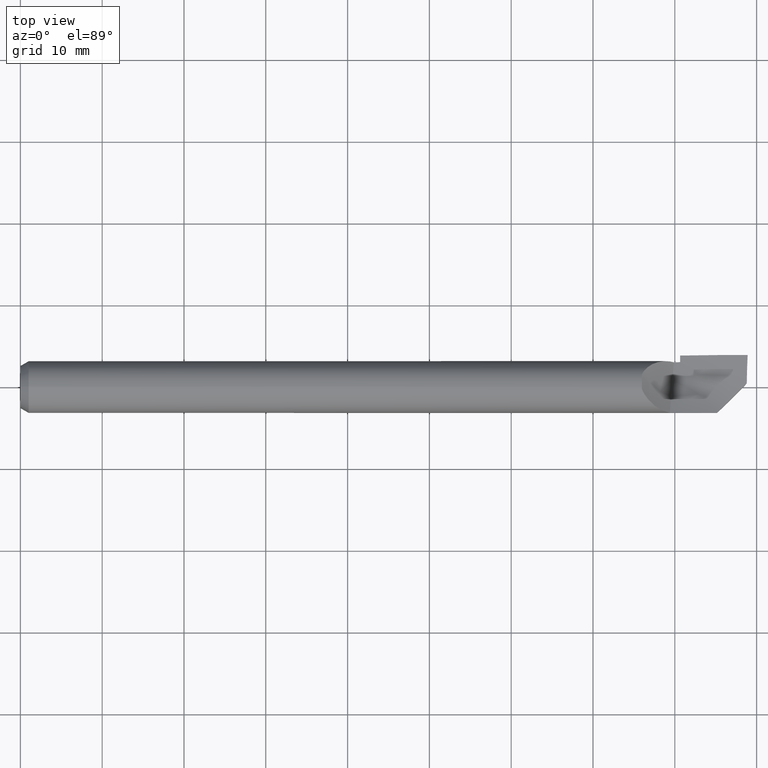
[diagram: clean part render]
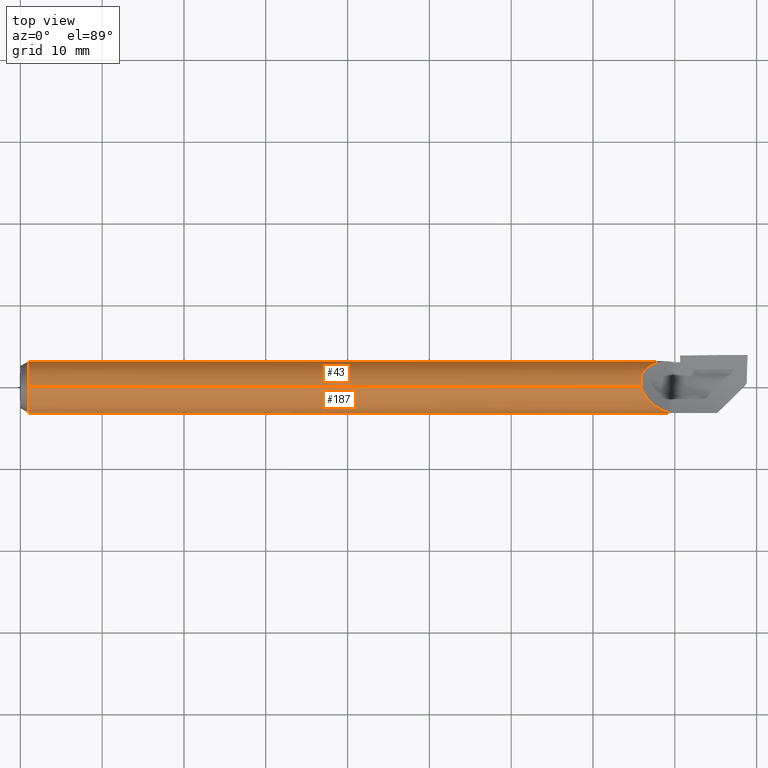
[diagram: same view with one multi-face feature highlighted, each face labeled with its STEP entity id]
A machine part, top view. The highlighted faces form ONE feature: a constant-radius fillet chain: 2 tangent blend faces with common blend radius 3.1725 mm. The faces share edges in the B-rep.
Their STEP definitions:
[1] entity #43 (Cylinder):
#5 = ORIENTED_EDGE ( 'NONE', *, *, #636, .F. ) ;
#9 = CARTESIAN_POINT ( 'NONE',  ( 3.175000000000001155, 0.09055362798966817839, -0.08602354595091822598 ) ) ;
#13 = CARTESIAN_POINT ( 'NONE',  ( 3.060351242161530205, 0.1169295297306296999, 0.04390447595362416411 ) ) ;
#18 = EDGE_CURVE ( 'NONE', #201, #199, #127, .T. ) ;
#19 = DIRECTION ( 'NONE',  ( -1.000000000000000000, -0.000000000000000000, -0.000000000000000000 ) ) ;
#36 = CARTESIAN_POINT ( 'NONE',  ( 3.013159567584972276, 0.08955409253617904741, 0.08708879624686161058 ) ) ;
#43 = ADVANCED_FACE ( 'NONE', ( #374 ), #301, .T. ) ;
#44 =( BOUNDED_CURVE ( )  B_SPLINE_CURVE ( 2, ( #358, #521, #574 ),
 .UNSPECIFIED., .F., .F. ) 
 B_SPLINE_CURVE_WITH_KNOTS ( ( 3, 3 ),
 ( 0.02873534713698542783, 0.03143753000647300788 ),
 .UNSPECIFIED. ) 
 CURVE ( )  GEOMETRIC_REPRESENTATION_ITEM ( )  RATIONAL_B_SPLINE_CURVE ( ( 0.9698469433659832051, 0.9697818586907493987, 0.9697867123744317031 ) ) 
 REPRESENTATION_ITEM ( '' )  );
#45 = CARTESIAN_POINT ( 'NONE',  ( 3.015572442172250955, 0.09174419123815412414, 0.08479956588348636082 ) ) ;
#50 = EDGE_LOOP ( 'NONE', ( #5, #109, #400, #533, #221, #649, #723, #511, #609, #392, #262 ) ) ;
#57 = AXIS2_PLACEMENT_3D ( 'NONE', #480, #286, #524 ) ;
#69 = CARTESIAN_POINT ( 'NONE',  ( 3.164993681968681916, 0.04158297014477048414, -0.1177773303377043640 ) ) ;
#77 = CARTESIAN_POINT ( 'NONE',  ( 3.092052141534185505, 0.1240269611545397332, 0.01494308968733345892 ) ) ;
#85 = CARTESIAN_POINT ( 'NONE',  ( 3.144404332545035263, 0.1199521406065451878, -0.03480652185880706018 ) ) ;
#87 = CARTESIAN_POINT ( 'NONE',  ( 3.097980661279803982, 0.1245561299189576893, 0.009418666560764303933 ) ) ;
#96 = VECTOR ( 'NONE', #19, 39.37007874015748143 ) ;
#100 = AXIS2_PLACEMENT_3D ( 'NONE', #114, #457, #122 ) ;
#101 = CARTESIAN_POINT ( 'NONE',  ( 0.04000000000000000083, 1.529583852135044220E-17, -0.1248999999999999971 ) ) ;
#109 = ORIENTED_EDGE ( 'NONE', *, *, #137, .T. ) ;
#114 = CARTESIAN_POINT ( 'NONE',  ( 3.174999999999999822, 0.000000000000000000, 0.000000000000000000 ) ) ;
#115 = VERTEX_POINT ( 'NONE', #319 ) ;
#121 = B_SPLINE_CURVE_WITH_KNOTS ( 'NONE', 3,
 ( #154, #705, #599, #146, #550, #36, #45, #256, #486, #495, #384, #709, #436, #654, #234, #591, #580, #631, #189, #242, #128, #13, #412, #181, #641, #702, #134, #646, #367, #140, #634, #77, #586, #87, #291, #475, #471, #465, #232, #362, #479, #246 ),
 .UNSPECIFIED., .F., .F.,
 ( 4, 2, 2, 1, 1, 1, 1, 2, 2, 2, 2, 1, 1, 1, 1, 1, 2, 2, 2, 2, 2, 1, 1, 1, 2, 2, 4 ),
 ( 0.000000000000000000, 0.1249999999994285682, 0.1874999999991447397, 0.2187499999990028809, 0.2343749999989318822, 0.2421874999988963550, 0.2460937499988766208, 0.2480468749988667398, 0.2499999999988568311, 0.3749999999981504795, 0.4374999999977973175, 0.4687499999976207921, 0.4843749999975303089, 0.4921874999974871767, 0.4960937499974656384, 0.4980468749974548692, 0.4990234374974494291, 0.4999999999974440446, 0.6249999999979299892, 0.6874999999981754595, 0.7187499999983002485, 0.7343749999983625321, 0.7421874999983953947, 0.7460937499984133803, 0.7480468749984239274, 0.7499999999984345855, 1.000000000000000000 ),
 .UNSPECIFIED. ) ;
#122 = DIRECTION ( 'NONE',  ( 0.000000000000000000, 0.000000000000000000, -1.000000000000000000 ) ) ;
#123 = AXIS2_PLACEMENT_3D ( 'NONE', #318, #502, #552 ) ;
#127 = CIRCLE ( 'NONE', #57, 0.1248999999999999971 ) ;
#128 = CARTESIAN_POINT ( 'NONE',  ( 3.059456858033632543, 0.1166230789619448899, 0.04471572362713241433 ) ) ;
#134 = CARTESIAN_POINT ( 'NONE',  ( 3.063536984851126910, 0.1179943198108090313, 0.04101498454096539487 ) ) ;
#137 = EDGE_CURVE ( 'NONE', #307, #223, #409, .T. ) ;
#140 = CARTESIAN_POINT ( 'NONE',  ( 3.082629254565365962, 0.1227126659657724189, 0.02367513149059939301 ) ) ;
#146 = CARTESIAN_POINT ( 'NONE',  ( 3.005712418283758680, 0.08203240738333091031, 0.09427124872229240837 ) ) ;
#154 = CARTESIAN_POINT ( 'NONE',  ( 2.991000401229259253, 0.05945250750572621951, 0.1098426572479087732 ) ) ;
#155 = CIRCLE ( 'NONE', #100, 0.1248999999999999971 ) ;
#164 = AXIS2_PLACEMENT_3D ( 'NONE', #247, #422, #642 ) ;
#170 =( BOUNDED_CURVE ( )  B_SPLINE_CURVE ( 2, ( #433, #614, #269 ),
 .UNSPECIFIED., .F., .T. ) 
 B_SPLINE_CURVE_WITH_KNOTS ( ( 3, 3 ),
 ( 0.6154841053960781183, 0.6377767502489465334 ),
 .UNSPECIFIED. ) 
 CURVE ( )  GEOMETRIC_REPRESENTATION_ITEM ( )  RATIONAL_B_SPLINE_CURVE ( ( 0.9963841304086362705, 0.9961399496440248580, 0.9959362357333968463 ) ) 
 REPRESENTATION_ITEM ( '' )  );
#181 = CARTESIAN_POINT ( 'NONE',  ( 3.060993577853104330, 0.1171461910606215739, 0.04332186279367256088 ) ) ;
#189 = CARTESIAN_POINT ( 'NONE',  ( 3.054209512856410846, 0.1147115061212685694, 0.04947554016240530983 ) ) ;
#196 = VERTEX_POINT ( 'NONE', #9 ) ;
#199 = VERTEX_POINT ( 'NONE', #683 ) ;
#201 = VERTEX_POINT ( 'NONE', #355 ) ;
#219 = CARTESIAN_POINT ( 'NONE',  ( 3.174999999999998934, 0.1205259677332470303, -0.03276432666734185872 ) ) ;
#221 = ORIENTED_EDGE ( 'NONE', *, *, #18, .F. ) ;
#223 = VERTEX_POINT ( 'NONE', #101 ) ;
#230 = DIRECTION ( 'NONE',  ( -1.000000000000000000, -0.000000000000000000, -0.000000000000000000 ) ) ;
#231 =( BOUNDED_CURVE ( )  B_SPLINE_CURVE ( 2, ( #630, #69, #360 ),
 .UNSPECIFIED., .F., .T. ) 
 B_SPLINE_CURVE_WITH_KNOTS ( ( 3, 3 ),
 ( 0.3622232497511194693, 0.3845158946039529124 ),
 .UNSPECIFIED. ) 
 CURVE ( )  GEOMETRIC_REPRESENTATION_ITEM ( )  RATIONAL_B_SPLINE_CURVE ( ( 0.9959362357333982896, 0.9961399496440260792, 0.9963841304086371586 ) ) 
 REPRESENTATION_ITEM ( '' )  );
#232 = CARTESIAN_POINT ( 'NONE',  ( 3.102797602016997836, 0.1248031549621601705, 0.004919168521958743392 ) ) ;
#234 = CARTESIAN_POINT ( 'NONE',  ( 3.032374988633280477, 0.1041527270385999571, 0.06928547170208708417 ) ) ;
#242 = CARTESIAN_POINT ( 'NONE',  ( 3.057685084005004494, 0.1159995307715388502, 0.04632285640271501664 ) ) ;
#243 = DIRECTION ( 'NONE',  ( -1.000000000000000000, -0.000000000000000000, -0.000000000000000000 ) ) ;
#246 = CARTESIAN_POINT ( 'NONE',  ( 3.144404332545035263, 0.1199521406065451878, -0.03480652185880706018 ) ) ;
#247 = CARTESIAN_POINT ( 'NONE',  ( 0.04000000000000000083, 0.000000000000000000, 0.000000000000000000 ) ) ;
#254 = AXIS2_PLACEMENT_3D ( 'NONE', #648, #243, #593 ) ;
#256 = CARTESIAN_POINT ( 'NONE',  ( 3.018561227604406483, 0.09422468548347183448, 0.08199839772101800983 ) ) ;
#257 = VERTEX_POINT ( 'NONE', #85 ) ;
#262 = ORIENTED_EDGE ( 'NONE', *, *, #677, .F. ) ;
#269 = CARTESIAN_POINT ( 'NONE',  ( 3.175000000000001155, 0.09055362798966817839, -0.08602354595091822598 ) ) ;
#274 = CIRCLE ( 'NONE', #164, 0.1248999999999999971 ) ;
#277 = CARTESIAN_POINT ( 'NONE',  ( 0.000000000000000000, 0.000000000000000000, 0.1248999999999999971 ) ) ;
#285 = EDGE_CURVE ( 'NONE', #201, #257, #121, .T. ) ;
#286 = DIRECTION ( 'NONE',  ( 1.000000000000000000, 0.000000000000000000, 0.000000000000000000 ) ) ;
#291 = CARTESIAN_POINT ( 'NONE',  ( 3.100424267437243309, 0.1246990184371287308, 0.007136783712175319427 ) ) ;
#295 = CARTESIAN_POINT ( 'NONE',  ( 3.154997276976144960, 0.04082568376012370159, -0.1180392882669460269 ) ) ;
#301 = CYLINDRICAL_SURFACE ( 'NONE', #254, 0.1248999999999999971 ) ;
#307 = VERTEX_POINT ( 'NONE', #519 ) ;
#318 = CARTESIAN_POINT ( 'NONE',  ( 3.155000000000000249, 0.000000000000000000, 0.000000000000000000 ) ) ;
#319 = CARTESIAN_POINT ( 'NONE',  ( 0.04000000000000000083, 0.000000000000000000, 0.1248999999999999971 ) ) ;
#341 = DIRECTION ( 'NONE',  ( 0.000000000000000000, 0.000000000000000000, -1.000000000000000000 ) ) ;
#355 = CARTESIAN_POINT ( 'NONE',  ( 2.991000401229259253, 0.05945250750572621951, 0.1098426572479087732 ) ) ;
#356 = EDGE_CURVE ( 'NONE', #577, #257, #44, .T. ) ;
#358 = CARTESIAN_POINT ( 'NONE',  ( 3.174999999999998934, 0.1205259677332470303, -0.03276432666734185872 ) ) ;
#360 = CARTESIAN_POINT ( 'NONE',  ( 3.154997276976144960, 0.04082568376012370159, -0.1180392882669460269 ) ) ;
#362 = CARTESIAN_POINT ( 'NONE',  ( 3.120083152647940228, 0.1254236981689557939, -0.01123640970588376566 ) ) ;
#367 = CARTESIAN_POINT ( 'NONE',  ( 3.078573267594685969, 0.1219014870699065972, 0.02739903125560276889 ) ) ;
#372 = CARTESIAN_POINT ( 'NONE',  ( 3.174999999999999822, 0.04233146308355638376, -0.1175076901027135440 ) ) ;
#374 = FACE_OUTER_BOUND ( 'NONE', #50, .T. ) ;
#381 = VERTEX_POINT ( 'NONE', #295 ) ;
#384 = CARTESIAN_POINT ( 'NONE',  ( 3.021215356388041506, 0.09630816391068187932, 0.07952839634199278251 ) ) ;
#392 = ORIENTED_EDGE ( 'NONE', *, *, #496, .F. ) ;
#398 = EDGE_CURVE ( 'NONE', #402, #196, #170, .T. ) ;
#400 = ORIENTED_EDGE ( 'NONE', *, *, #439, .F. ) ;
#402 = VERTEX_POINT ( 'NONE', #712 ) ;
#405 = DIRECTION ( 'NONE',  ( 1.000000000000000000, 0.000000000000000000, 0.000000000000000000 ) ) ;
#409 = LINE ( 'NONE', #516, #96 ) ;
#411 = CIRCLE ( 'NONE', #123, 0.1248999999999999971 ) ;
#412 = CARTESIAN_POINT ( 'NONE',  ( 3.060800558503873336, 0.1170813981693856892, 0.04349693422794589925 ) ) ;
#416 = CIRCLE ( 'NONE', #563, 0.1248999999999999971 ) ;
#422 = DIRECTION ( 'NONE',  ( -1.000000000000000000, -0.000000000000000000, -0.000000000000000000 ) ) ;
#433 = CARTESIAN_POINT ( 'NONE',  ( 3.154999092325381671, 0.08943842285833072947, -0.08718244402187172448 ) ) ;
#436 = CARTESIAN_POINT ( 'NONE',  ( 3.021588665319364431, 0.09659295394283731739, 0.07918219367280039667 ) ) ;
#439 = EDGE_CURVE ( 'NONE', #115, #223, #274, .T. ) ;
#446 = VECTOR ( 'NONE', #230, 39.37007874015748143 ) ;
#457 = DIRECTION ( 'NONE',  ( 1.000000000000000000, 0.000000000000000000, 0.000000000000000000 ) ) ;
#460 = LINE ( 'NONE', #277, #446 ) ;
#465 = CARTESIAN_POINT ( 'NONE',  ( 3.102569425568228567, 0.1247946180181914444, 0.005132419918792499591 ) ) ;
#471 = CARTESIAN_POINT ( 'NONE',  ( 3.102208959520945442, 0.1247803083583885475, 0.005469283912415494851 ) ) ;
#475 = CARTESIAN_POINT ( 'NONE',  ( 3.101669967368025471, 0.1247578880299937271, 0.005972954349564627181 ) ) ;
#479 = CARTESIAN_POINT ( 'NONE',  ( 3.133906868615869978, 0.1229253339752330726, -0.02456997777136916278 ) ) ;
#480 = CARTESIAN_POINT ( 'NONE',  ( 2.991000401229259253, 0.000000000000000000, 0.000000000000000000 ) ) ;
#486 = CARTESIAN_POINT ( 'NONE',  ( 3.020099061590568734, 0.09544499065678826999, 0.08056532899827593963 ) ) ;
#495 = CARTESIAN_POINT ( 'NONE',  ( 3.020878838901168706, 0.09604999617736989515, 0.07984069034992777314 ) ) ;
#496 = EDGE_CURVE ( 'NONE', #381, #402, #411, .T. ) ;
#502 = DIRECTION ( 'NONE',  ( 1.000000000000000000, 0.000000000000000000, 0.000000000000000000 ) ) ;
#511 = ORIENTED_EDGE ( 'NONE', *, *, #578, .F. ) ;
#516 = CARTESIAN_POINT ( 'NONE',  ( 0.000000000000000000, 1.529583852135044220E-17, -0.1248999999999999971 ) ) ;
#519 = CARTESIAN_POINT ( 'NONE',  ( 3.174999999999999822, 0.000000000000000000, -0.1248999999999999971 ) ) ;
#521 = CARTESIAN_POINT ( 'NONE',  ( 3.159703116382476029, 0.1202477255646206139, -0.03378786079878862147 ) ) ;
#524 = DIRECTION ( 'NONE',  ( 0.000000000000000000, 0.000000000000000000, -1.000000000000000000 ) ) ;
#533 = ORIENTED_EDGE ( 'NONE', *, *, #610, .F. ) ;
#550 = CARTESIAN_POINT ( 'NONE',  ( 3.008532407073654991, 0.08510006257403504581, 0.09151789462568996059 ) ) ;
#552 = DIRECTION ( 'NONE',  ( 0.000000000000000000, 0.000000000000000000, -1.000000000000000000 ) ) ;
#563 = AXIS2_PLACEMENT_3D ( 'NONE', #731, #405, #341 ) ;
#574 = CARTESIAN_POINT ( 'NONE',  ( 3.144404332545035263, 0.1199521406065451878, -0.03480652185880706018 ) ) ;
#577 = VERTEX_POINT ( 'NONE', #219 ) ;
#578 = EDGE_CURVE ( 'NONE', #196, #577, #155, .T. ) ;
#580 = CARTESIAN_POINT ( 'NONE',  ( 3.045777301224370071, 0.1111343403624529685, 0.05712344650157479692 ) ) ;
#586 = CARTESIAN_POINT ( 'NONE',  ( 3.095968073780500873, 0.1243941859557160801, 0.01129556355712608290 ) ) ;
#591 = CARTESIAN_POINT ( 'NONE',  ( 3.042271347285370631, 0.1094334306134834151, 0.06030255839351563590 ) ) ;
#593 = DIRECTION ( 'NONE',  ( 0.000000000000000000, 0.000000000000000000, 1.000000000000000000 ) ) ;
#599 = CARTESIAN_POINT ( 'NONE',  ( 2.998046806567022049, 0.07262138876754677119, 0.1019393970971632091 ) ) ;
#609 = ORIENTED_EDGE ( 'NONE', *, *, #398, .F. ) ;
#610 = EDGE_CURVE ( 'NONE', #199, #115, #460, .T. ) ;
#614 = CARTESIAN_POINT ( 'NONE',  ( 3.164993681968725436, 0.09000568072894396532, -0.08660034863704028918 ) ) ;
#630 = CARTESIAN_POINT ( 'NONE',  ( 3.174999999999999822, 0.04233146308355638376, -0.1175076901027135440 ) ) ;
#631 = CARTESIAN_POINT ( 'NONE',  ( 3.051346983715321315, 0.1135429671677984642, 0.05207191703534825439 ) ) ;
#634 = CARTESIAN_POINT ( 'NONE',  ( 3.089587177039691213, 0.1237245342876405890, 0.01723295317661905843 ) ) ;
#636 = EDGE_CURVE ( 'NONE', #307, #679, #416, .T. ) ;
#641 = CARTESIAN_POINT ( 'NONE',  ( 3.061122358575375291, 0.1171893207682305621, 0.04320505727118314349 ) ) ;
#642 = DIRECTION ( 'NONE',  ( 0.000000000000000000, 0.000000000000000000, 1.000000000000000000 ) ) ;
#646 = CARTESIAN_POINT ( 'NONE',  ( 3.068153190719259182, 0.1195033695645657812, 0.03690030510870125763 ) ) ;
#648 = CARTESIAN_POINT ( 'NONE',  ( 0.000000000000000000, 0.000000000000000000, 0.000000000000000000 ) ) ;
#649 = ORIENTED_EDGE ( 'NONE', *, *, #285, .T. ) ;
#654 = CARTESIAN_POINT ( 'NONE',  ( 3.026606087085095709, 0.1003989948031664414, 0.07453225638203395120 ) ) ;
#677 = EDGE_CURVE ( 'NONE', #679, #381, #231, .T. ) ;
#679 = VERTEX_POINT ( 'NONE', #372 ) ;
#683 = CARTESIAN_POINT ( 'NONE',  ( 2.991000401229259253, 0.000000000000000000, 0.1248999999999999971 ) ) ;
#702 = CARTESIAN_POINT ( 'NONE',  ( 3.061233434048850732, 0.1172263991159961938, 0.04310431124673041320 ) ) ;
#705 = CARTESIAN_POINT ( 'NONE',  ( 2.993995538293130920, 0.06607263003470871532, 0.1062595876656409616 ) ) ;
#709 = CARTESIAN_POINT ( 'NONE',  ( 3.021440218537263966, 0.09648002482795725587, 0.07931981511433702781 ) ) ;
#712 = CARTESIAN_POINT ( 'NONE',  ( 3.154999092325381671, 0.08943842285833072947, -0.08718244402187172448 ) ) ;
#723 = ORIENTED_EDGE ( 'NONE', *, *, #356, .F. ) ;
#731 = CARTESIAN_POINT ( 'NONE',  ( 3.174999999999999822, 0.000000000000000000, 0.000000000000000000 ) ) ;
[2] entity #187 (Cylinder):
#8 = VERTEX_POINT ( 'NONE', #120 ) ;
#11 = CARTESIAN_POINT ( 'NONE',  ( 3.094042376239798831, -0.1152339174047414261, 0.04819054716353866896 ) ) ;
#15 = CARTESIAN_POINT ( 'NONE',  ( 3.023638633355623107, -0.06361765913626959978, 0.1074965029286738816 ) ) ;
#19 = DIRECTION ( 'NONE',  ( -1.000000000000000000, -0.000000000000000000, -0.000000000000000000 ) ) ;
#24 = CARTESIAN_POINT ( 'NONE',  ( 3.021802749776972608, -0.06152602861034239118, 0.1087149189610005506 ) ) ;
#37 = VECTOR ( 'NONE', #476, 39.37007874015748143 ) ;
#42 = VERTEX_POINT ( 'NONE', #194 ) ;
#62 = EDGE_CURVE ( 'NONE', #307, #344, #485, .T. ) ;
#68 = CYLINDRICAL_SURFACE ( 'NONE', #700, 0.1248999999999999971 ) ;
#71 = CARTESIAN_POINT ( 'NONE',  ( 3.122046472584371291, -0.1234776257476574712, 0.01919930138644435069 ) ) ;
#75 = CARTESIAN_POINT ( 'NONE',  ( 3.052279218380861359, -0.09052906584526929090, 0.08604942616162131186 ) ) ;
#76 = CARTESIAN_POINT ( 'NONE',  ( 3.352769140823674388, -0.1246811370018606202, -0.07336456819902978377 ) ) ;
#80 = CARTESIAN_POINT ( 'NONE',  ( 3.107989277156481212, -0.1202108462596435112, 0.03406404363466659924 ) ) ;
#82 = DIRECTION ( 'NONE',  ( 0.000000000000000000, 0.000000000000000000, 1.000000000000000000 ) ) ;
#96 = VECTOR ( 'NONE', #19, 39.37007874015748143 ) ;
#101 = CARTESIAN_POINT ( 'NONE',  ( 0.04000000000000000083, 1.529583852135044220E-17, -0.1248999999999999971 ) ) ;
#112 = CARTESIAN_POINT ( 'NONE',  ( 3.264351851851850395, -0.1247678007292974400, 0.005745076254874972692 ) ) ;
#113 = VERTEX_POINT ( 'NONE', #543 ) ;
#115 = VERTEX_POINT ( 'NONE', #319 ) ;
#120 = CARTESIAN_POINT ( 'NONE',  ( 3.125460231133434963, -0.1239539591572526162, 0.01534359831467680020 ) ) ;
#124 = ORIENTED_EDGE ( 'NONE', *, *, #478, .F. ) ;
#125 = CARTESIAN_POINT ( 'NONE',  ( 3.057716736039519656, -0.09462296381664606071, 0.08153854661798716486 ) ) ;
#126 = CARTESIAN_POINT ( 'NONE',  ( 3.477450277825535618, -3.414809992080329023E-17, -0.1248999999999999971 ) ) ;
#132 = CARTESIAN_POINT ( 'NONE',  ( 3.089249625378090780, -0.1131532683183247012, 0.05288326354203787966 ) ) ;
#136 = CARTESIAN_POINT ( 'NONE',  ( 3.064392158006249645, -0.09929563577276420694, 0.07583891807140831498 ) ) ;
#137 = EDGE_CURVE ( 'NONE', #307, #223, #409, .T. ) ;
#157 = EDGE_CURVE ( 'NONE', #8, #42, #316, .T. ) ;
#171 = CARTESIAN_POINT ( 'NONE',  ( 3.308407065166079075, -0.1249085961250403776, 0.002687374128684246171 ) ) ;
#178 = AXIS2_PLACEMENT_3D ( 'NONE', #685, #309, #82 ) ;
#179 = CARTESIAN_POINT ( 'NONE',  ( 3.073574048085152999, -0.1051623276853832639, 0.06771642302151673065 ) ) ;
#182 = CARTESIAN_POINT ( 'NONE',  ( 3.017939480705743360, -0.05688737499463081271, 0.1111928313433849236 ) ) ;
#186 = CARTESIAN_POINT ( 'NONE',  ( 3.056491468869813932, -0.09372617704281617501, 0.08256578760473144707 ) ) ;
#187 = ADVANCED_FACE ( 'NONE', ( #370 ), #68, .T. ) ;
#192 = CARTESIAN_POINT ( 'NONE',  ( 3.019766801426896130, -0.05911167225763985095, 0.1100312609802526626 ) ) ;
#194 = CARTESIAN_POINT ( 'NONE',  ( 2.991000401229259253, -0.01130295429703349896, 0.1243875123320631881 ) ) ;
#199 = VERTEX_POINT ( 'NONE', #683 ) ;
#204 = ORIENTED_EDGE ( 'NONE', *, *, #62, .T. ) ;
#223 = VERTEX_POINT ( 'NONE', #101 ) ;
#229 = CARTESIAN_POINT ( 'NONE',  ( 3.045023635571233900, -0.08485814535378853607, 0.09198779291974945593 ) ) ;
#230 = DIRECTION ( 'NONE',  ( -1.000000000000000000, -0.000000000000000000, -0.000000000000000000 ) ) ;
#233 = CARTESIAN_POINT ( 'NONE',  ( 3.018775306208112852, -0.05791177294551826810, 0.1106638906131709038 ) ) ;
#235 = CARTESIAN_POINT ( 'NONE',  ( 3.097074899590689157, -0.1164622586083399053, 0.04518020081075590361 ) ) ;
#239 = CARTESIAN_POINT ( 'NONE',  ( 3.099015534102098179, -0.1171968619236710002, 0.04323073453867415372 ) ) ;
#244 = CARTESIAN_POINT ( 'NONE',  ( 3.018077970623159523, -0.05705786498677481444, 0.1111054418968268759 ) ) ;
#265 = ORIENTED_EDGE ( 'NONE', *, *, #294, .F. ) ;
#276 = ORIENTED_EDGE ( 'NONE', *, *, #555, .F. ) ;
#277 = CARTESIAN_POINT ( 'NONE',  ( 0.000000000000000000, 0.000000000000000000, 0.1248999999999999971 ) ) ;
#287 = DIRECTION ( 'NONE',  ( 0.000000000000000000, 0.000000000000000000, 1.000000000000000000 ) ) ;
#290 = CARTESIAN_POINT ( 'NONE',  ( 3.404458937304163602, -0.07299134052137161432, -0.1249000000000000110 ) ) ;
#293 = CARTESIAN_POINT ( 'NONE',  ( 3.061575566254704395, -0.09737599806823053761, 0.07826905176566188727 ) ) ;
#294 = EDGE_CURVE ( 'NONE', #223, #115, #349, .T. ) ;
#307 = VERTEX_POINT ( 'NONE', #519 ) ;
#309 = DIRECTION ( 'NONE',  ( -1.000000000000000000, -0.000000000000000000, -0.000000000000000000 ) ) ;
#311 =( BOUNDED_CURVE ( )  B_SPLINE_CURVE ( 3, ( #126, #290, #76, #701 ),
 .UNSPECIFIED., .F., .T. ) 
 B_SPLINE_CURVE_WITH_KNOTS ( ( 4, 4 ),
 ( 4.712388980384689674, 6.280194476991621144 ),
 .UNSPECIFIED. ) 
 CURVE ( )  GEOMETRIC_REPRESENTATION_ITEM ( )  RATIONAL_B_SPLINE_CURVE ( ( 1.000000000000000000, 0.8054422722044622951, 0.8054422722044622951, 1.000000000000000000 ) ) 
 REPRESENTATION_ITEM ( '' )  );
#316 = B_SPLINE_CURVE_WITH_KNOTS ( 'NONE', 3,
 ( #522, #71, #576, #80, #628, #239, #235, #11, #526, #514, #583, #132, #424, #179, #136, #293, #125, #186, #473, #520, #694, #350, #75, #571, #468, #229, #420, #686, #413, #15, #24, #192, #233, #639, #244, #182, #644, #359, #691, #365 ),
 .UNSPECIFIED., .F., .F.,
 ( 4, 2, 2, 2, 1, 2, 2, 2, 2, 2, 1, 1, 1, 2, 2, 2, 2, 1, 1, 1, 1, 2, 2, 4 ),
 ( 0.000000000000000000, 0.1250000000001441902, 0.1875000000002137457, 0.2187500000002484679, 0.2343750000002639278, 0.2421875000002735312, 0.2500000000002831624, 0.3750000000003977929, 0.4375000000004576339, 0.4687500000004846124, 0.4843750000005013212, 0.4921875000005132006, 0.4960937500005156431, 0.4980468750005169198, 0.5000000000005182521, 0.6250000000003632650, 0.6875000000002833289, 0.7187500000002433609, 0.7343750000002232659, 0.7421875000002132738, 0.7460937500002083889, 0.7480468750002058353, 0.7500000000002032818, 1.000000000000000000 ),
 .UNSPECIFIED. ) ;
#319 = CARTESIAN_POINT ( 'NONE',  ( 0.04000000000000000083, 0.000000000000000000, 0.1248999999999999971 ) ) ;
#344 = VERTEX_POINT ( 'NONE', #530 ) ;
#345 = CARTESIAN_POINT ( 'NONE',  ( 3.125460231133434963, -0.1239539591572526162, 0.01534359831467680020 ) ) ;
#349 = CIRCLE ( 'NONE', #178, 0.1248999999999999971 ) ;
#350 = CARTESIAN_POINT ( 'NONE',  ( 3.052476782960442669, -0.09068287158714158358, 0.08588751810431244360 ) ) ;
#359 = CARTESIAN_POINT ( 'NONE',  ( 3.005395100980244205, -0.04139132469642711060, 0.1190909745749657717 ) ) ;
#365 = CARTESIAN_POINT ( 'NONE',  ( 2.991000401229259253, -0.01130295429703349896, 0.1243875123320631881 ) ) ;
#370 = FACE_OUTER_BOUND ( 'NONE', #389, .T. ) ;
#389 = EDGE_LOOP ( 'NONE', ( #676, #204, #450, #276, #714, #124, #612, #265 ) ) ;
#393 = AXIS2_PLACEMENT_3D ( 'NONE', #484, #707, #434 ) ;
#409 = LINE ( 'NONE', #516, #96 ) ;
#413 = CARTESIAN_POINT ( 'NONE',  ( 3.027431447170090717, -0.06782242491986278932, 0.1049328712152750448 ) ) ;
#420 = CARTESIAN_POINT ( 'NONE',  ( 3.038675386142198231, -0.07916375410672392421, 0.09686243896392868202 ) ) ;
#424 = CARTESIAN_POINT ( 'NONE',  ( 3.080671461236778264, -0.1092298908593828388, 0.06118426759022413397 ) ) ;
#434 = DIRECTION ( 'NONE',  ( 0.000000000000000000, 0.000000000000000000, -1.000000000000000000 ) ) ;
#446 = VECTOR ( 'NONE', #230, 39.37007874015748143 ) ;
#450 = ORIENTED_EDGE ( 'NONE', *, *, #718, .T. ) ;
#460 = LINE ( 'NONE', #277, #446 ) ;
#464 = CARTESIAN_POINT ( 'NONE',  ( 0.000000000000000000, 0.000000000000000000, 0.000000000000000000 ) ) ;
#468 = CARTESIAN_POINT ( 'NONE',  ( 3.052126745790572304, -0.09041022946074273037, 0.08617433320886419557 ) ) ;
#473 = CARTESIAN_POINT ( 'NONE',  ( 3.054745082468289574, -0.09241986768436905031, 0.08401786681216352748 ) ) ;
#476 = DIRECTION ( 'NONE',  ( 1.000000000000000000, -0.000000000000000000, -0.000000000000000000 ) ) ;
#478 = EDGE_CURVE ( 'NONE', #199, #42, #481, .T. ) ;
#481 = CIRCLE ( 'NONE', #393, 0.1248999999999999971 ) ;
#484 = CARTESIAN_POINT ( 'NONE',  ( 2.991000401229259253, 0.000000000000000000, 0.000000000000000000 ) ) ;
#485 = LINE ( 'NONE', #652, #37 ) ;
#491 =( BOUNDED_CURVE ( )  B_SPLINE_CURVE ( 2, ( #345, #558, #112, #171, #515 ),
 .UNSPECIFIED., .F., .T. ) 
 B_SPLINE_CURVE_WITH_KNOTS ( ( 3, 2, 3 ),
 ( 0.01189342224065684239, 0.02417071182882457245, 0.03197089145279925770 ),
 .UNSPECIFIED. ) 
 CURVE ( )  GEOMETRIC_REPRESENTATION_ITEM ( )  RATIONAL_B_SPLINE_CURVE ( ( 0.9698195346286886398, 0.9696007348737432086, 0.9708256816846617676, 0.9700474313154443529, 0.9698519482427696570 ) ) 
 REPRESENTATION_ITEM ( '' )  );
#514 = CARTESIAN_POINT ( 'NONE',  ( 3.090903477753101924, -0.1138917496052922335, 0.05127385820158173596 ) ) ;
#515 = CARTESIAN_POINT ( 'NONE',  ( 3.352550836444441629, -0.1248994413810938370, -0.0003735541335652321792 ) ) ;
#516 = CARTESIAN_POINT ( 'NONE',  ( 0.000000000000000000, 1.529583852135044220E-17, -0.1248999999999999971 ) ) ;
#519 = CARTESIAN_POINT ( 'NONE',  ( 3.174999999999999822, 0.000000000000000000, -0.1248999999999999971 ) ) ;
#520 = CARTESIAN_POINT ( 'NONE',  ( 3.053894767855783510, -0.09177641538653937003, 0.08472171002664036221 ) ) ;
#522 = CARTESIAN_POINT ( 'NONE',  ( 3.125460231133434963, -0.1239539591572526162, 0.01534359831467680020 ) ) ;
#526 = CARTESIAN_POINT ( 'NONE',  ( 3.092495721668407693, -0.1145881279114605300, 0.04971722205333403699 ) ) ;
#530 = CARTESIAN_POINT ( 'NONE',  ( 3.477450277825535618, -3.414809992080329023E-17, -0.1248999999999999971 ) ) ;
#543 = CARTESIAN_POINT ( 'NONE',  ( 3.352550836444441629, -0.1248994413810938370, -0.0003735541335652321792 ) ) ;
#555 = EDGE_CURVE ( 'NONE', #8, #113, #491, .T. ) ;
#558 = CARTESIAN_POINT ( 'NONE',  ( 3.194978091071773108, -0.1245460901672910681, 0.01056004092945502133 ) ) ;
#571 = CARTESIAN_POINT ( 'NONE',  ( 3.052147985298395483, -0.09042676304135652265, 0.08615692677564458501 ) ) ;
#576 = CARTESIAN_POINT ( 'NONE',  ( 3.117201652549389745, -0.1226681185480045233, 0.02442394727944659921 ) ) ;
#583 = CARTESIAN_POINT ( 'NONE',  ( 3.089831850844249050, -0.1134159011241090004, 0.05231799437322515872 ) ) ;
#588 = DIRECTION ( 'NONE',  ( -1.000000000000000000, -0.000000000000000000, -0.000000000000000000 ) ) ;
#610 = EDGE_CURVE ( 'NONE', #199, #115, #460, .T. ) ;
#612 = ORIENTED_EDGE ( 'NONE', *, *, #610, .T. ) ;
#628 = CARTESIAN_POINT ( 'NONE',  ( 3.104594294468772109, -0.1191807700922595664, 0.03757549007336075803 ) ) ;
#639 = CARTESIAN_POINT ( 'NONE',  ( 3.018286178337786119, -0.05731374223617943103, 0.1109739133083433443 ) ) ;
#644 = CARTESIAN_POINT ( 'NONE',  ( 3.017898388335010562, -0.05683675989071663298, 0.1112187519483049392 ) ) ;
#652 = CARTESIAN_POINT ( 'NONE',  ( 2.999999999999999556, 0.000000000000000000, -0.1248999999999999971 ) ) ;
#676 = ORIENTED_EDGE ( 'NONE', *, *, #137, .F. ) ;
#683 = CARTESIAN_POINT ( 'NONE',  ( 2.991000401229259253, 0.000000000000000000, 0.1248999999999999971 ) ) ;
#685 = CARTESIAN_POINT ( 'NONE',  ( 0.04000000000000000083, 0.000000000000000000, 0.000000000000000000 ) ) ;
#686 = CARTESIAN_POINT ( 'NONE',  ( 3.030121385255953648, -0.07065454130770194852, 0.1030546035079263345 ) ) ;
#691 = CARTESIAN_POINT ( 'NONE',  ( 2.996461211372685174, -0.02574506713798382918, 0.1230751470445839296 ) ) ;
#694 = CARTESIAN_POINT ( 'NONE',  ( 3.052942771670648092, -0.09104419112720692209, 0.08550511591986799387 ) ) ;
#700 = AXIS2_PLACEMENT_3D ( 'NONE', #464, #588, #287 ) ;
#701 = CARTESIAN_POINT ( 'NONE',  ( 3.352550836444441629, -0.1248994413810938370, -0.0003735541335652321792 ) ) ;
#707 = DIRECTION ( 'NONE',  ( 1.000000000000000000, 0.000000000000000000, 0.000000000000000000 ) ) ;
#714 = ORIENTED_EDGE ( 'NONE', *, *, #157, .T. ) ;
#718 = EDGE_CURVE ( 'NONE', #344, #113, #311, .T. ) ;